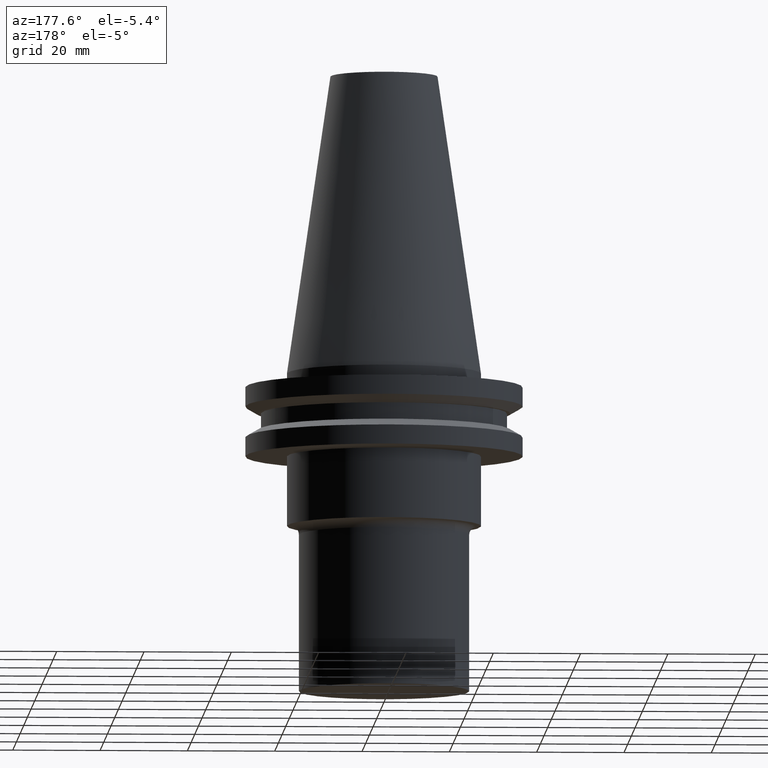
[diagram: clean part render]
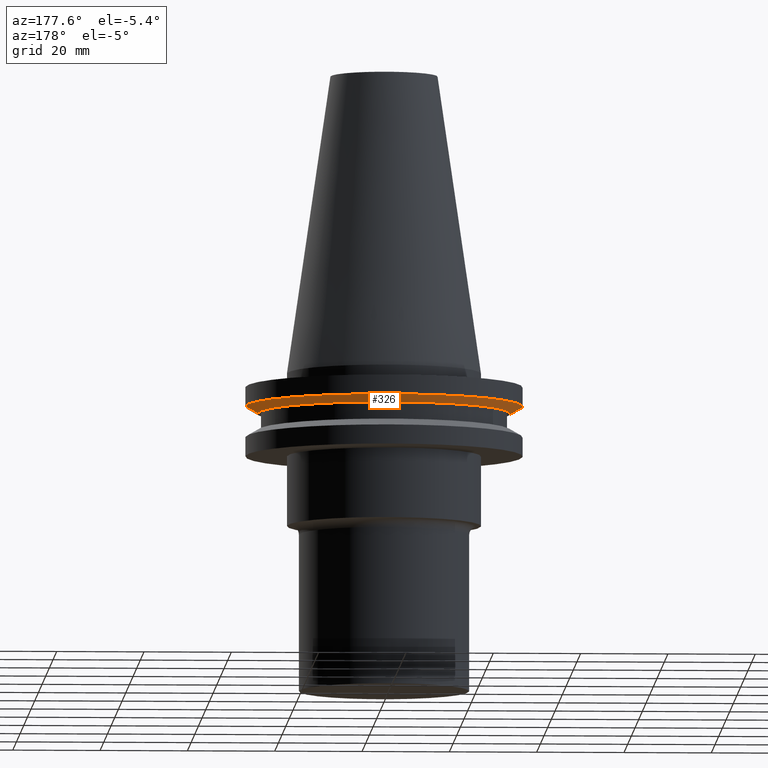
[diagram: same view with one face highlighted and labeled with its STEP entity id]
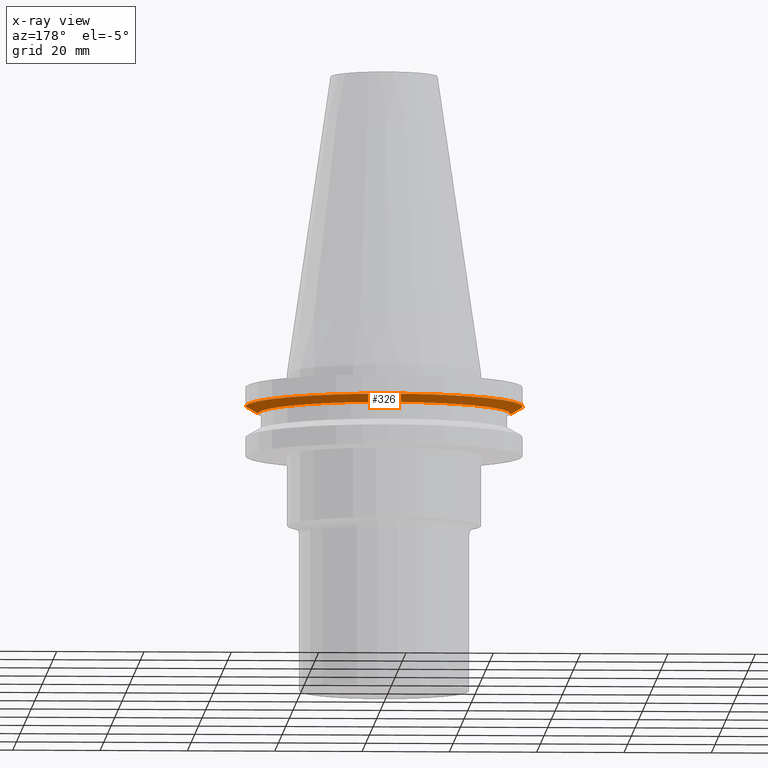
[diagram: x-ray of the same camera — body ghosted, the highlighted face saturated]
A machine part, auxiliary view. The second image highlights one B-rep face of the part: STEP entity #326.
The next image is the same camera in x-ray: the body ghosted, the highlighted face saturated — about 0% of this face is hidden behind the body in this view.
In plain terms, the highlighted conical surface has half-angle 60 deg.
Its self-contained STEP definition (entity closure, byte-faithful):
#34 = VERTEX_POINT ( 'NONE', #435 ) ;
#52 = DIRECTION ( 'NONE',  ( -0.000000000000000000, -0.000000000000000000, 1.000000000000000000 ) ) ;
#62 = CARTESIAN_POINT ( 'NONE',  ( 28.97919780457007732, 0.000000000000000000, -9.205000000000005400 ) ) ;
#75 = VERTEX_POINT ( 'NONE', #736 ) ;
#96 = CARTESIAN_POINT ( 'NONE',  ( 31.75000000000000000, 0.000000000000000000, -7.605276606597335842 ) ) ;
#107 = EDGE_LOOP ( 'NONE', ( #324, #112, #666, #615 ) ) ;
#112 = ORIENTED_EDGE ( 'NONE', *, *, #234, .T. ) ;
#115 = EDGE_CURVE ( 'NONE', #75, #775, #744, .T. ) ;
#125 = FACE_OUTER_BOUND ( 'NONE', #107, .T. ) ;
#128 = AXIS2_PLACEMENT_3D ( 'NONE', #504, #52, #575 ) ;
#135 = EDGE_CURVE ( 'NONE', #601, #34, #474, .T. ) ;
#162 = EDGE_CURVE ( 'NONE', #75, #601, #628, .T. ) ;
#232 = CARTESIAN_POINT ( 'NONE',  ( 0.000000000000000000, 0.000000000000000000, -9.205000000000005400 ) ) ;
#234 = EDGE_CURVE ( 'NONE', #775, #34, #290, .T. ) ;
#244 = CARTESIAN_POINT ( 'NONE',  ( 0.000000000000000000, 0.000000000000000000, -9.205000000000005400 ) ) ;
#248 = DIRECTION ( 'NONE',  ( -0.000000000000000000, -0.000000000000000000, 1.000000000000000000 ) ) ;
#286 = DIRECTION ( 'NONE',  ( 0.8660254037844389297, 0.000000000000000000, 0.4999999999999995004 ) ) ;
#290 = LINE ( 'NONE', #346, #545 ) ;
#324 = ORIENTED_EDGE ( 'NONE', *, *, #115, .T. ) ;
#326 = ADVANCED_FACE ( 'NONE', ( #125 ), #382, .T. ) ;
#346 = CARTESIAN_POINT ( 'NONE',  ( -28.97919780457007732, 3.548928183322474856E-15, -9.205000000000005400 ) ) ;
#382 = CONICAL_SURFACE ( 'NONE', #740, 28.97919780457007732, 1.047197551196598297 ) ;
#435 = CARTESIAN_POINT ( 'NONE',  ( -31.75000000000000000, 3.888253587292846476E-15, -7.605276606597335842 ) ) ;
#450 = DIRECTION ( 'NONE',  ( -0.8660254037844389297, 1.060575238724907285E-16, 0.4999999999999995004 ) ) ;
#474 = CIRCLE ( 'NONE', #128, 31.75000000000000000 ) ;
#492 = VECTOR ( 'NONE', #286, 1000.000000000000000 ) ;
#504 = CARTESIAN_POINT ( 'NONE',  ( 0.000000000000000000, 0.000000000000000000, -7.605276606597335842 ) ) ;
#515 = DIRECTION ( 'NONE',  ( -0.000000000000000000, -0.000000000000000000, 1.000000000000000000 ) ) ;
#529 = CARTESIAN_POINT ( 'NONE',  ( -28.97919780457007732, 3.718590885307660666E-15, -9.205000000000005400 ) ) ;
#545 = VECTOR ( 'NONE', #450, 1000.000000000000000 ) ;
#573 = AXIS2_PLACEMENT_3D ( 'NONE', #232, #515, #639 ) ;
#575 = DIRECTION ( 'NONE',  ( 1.000000000000000000, 0.000000000000000000, 0.000000000000000000 ) ) ;
#601 = VERTEX_POINT ( 'NONE', #96 ) ;
#615 = ORIENTED_EDGE ( 'NONE', *, *, #162, .F. ) ;
#628 = LINE ( 'NONE', #62, #492 ) ;
#639 = DIRECTION ( 'NONE',  ( 1.000000000000000000, 0.000000000000000000, 0.000000000000000000 ) ) ;
#666 = ORIENTED_EDGE ( 'NONE', *, *, #135, .F. ) ;
#725 = DIRECTION ( 'NONE',  ( 1.000000000000000000, 0.000000000000000000, 0.000000000000000000 ) ) ;
#736 = CARTESIAN_POINT ( 'NONE',  ( 28.97919780457007732, 0.000000000000000000, -9.205000000000005400 ) ) ;
#740 = AXIS2_PLACEMENT_3D ( 'NONE', #244, #248, #725 ) ;
#744 = CIRCLE ( 'NONE', #573, 28.97919780457007732 ) ;
#775 = VERTEX_POINT ( 'NONE', #529 ) ;